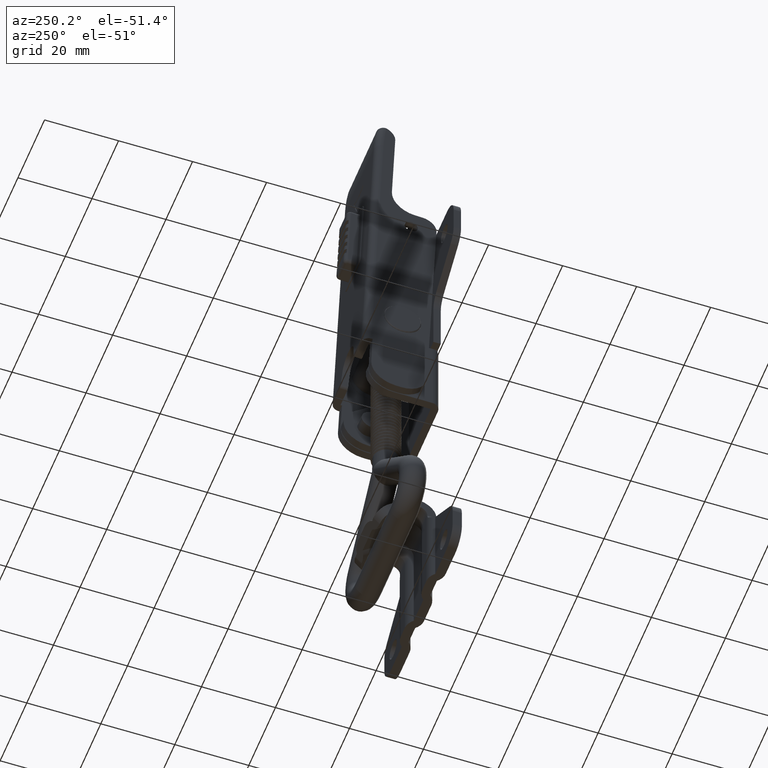
[diagram: clean part render]
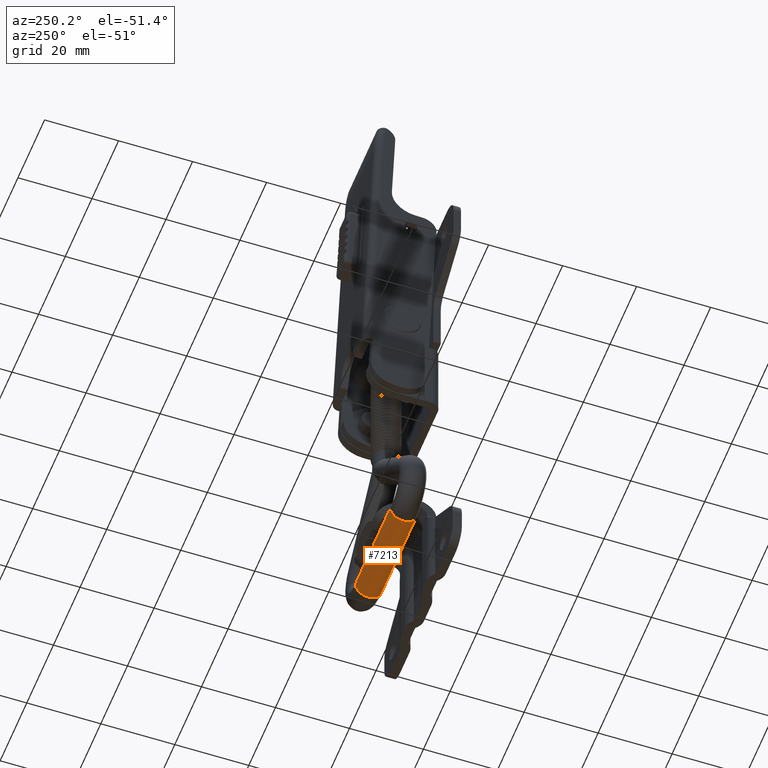
[diagram: same view with one face highlighted and labeled with its STEP entity id]
A machine part, auxiliary view. The second image highlights one B-rep face of the part: STEP entity #7213.
In plain terms, the highlighted cylindrical surface (bore or boss wall) has radius 3.5 mm, axis along (1, 0, 0).
Its self-contained STEP definition (entity closure, byte-faithful):
#1704=FACE_BOUND('',#2274,.T.);
#1879=FACE_OUTER_BOUND('',#2273,.T.);
#2273=EDGE_LOOP('',(#5659));
#2274=EDGE_LOOP('',(#5660));
#2673=CIRCLE('',#7679,3.5);
#2674=CIRCLE('',#7680,3.5);
#3250=VERTEX_POINT('',#32728);
#3251=VERTEX_POINT('',#32730);
#4131=EDGE_CURVE('',#3250,#3250,#2673,.T.);
#4132=EDGE_CURVE('',#3251,#3251,#2674,.T.);
#5659=ORIENTED_EDGE('',*,*,#4131,.T.);
#5660=ORIENTED_EDGE('',*,*,#4132,.F.);
#6991=CYLINDRICAL_SURFACE('',#7678,3.5);
#7213=ADVANCED_FACE('',(#1879,#1704),#6991,.T.);
#7678=AXIS2_PLACEMENT_3D('',#32727,#8768,#8769);
#7679=AXIS2_PLACEMENT_3D('',#32729,#8770,#8771);
#7680=AXIS2_PLACEMENT_3D('',#32731,#8772,#8773);
#8768=DIRECTION('center_axis',(8.10505021779592E-15,0.,-1.));
#8769=DIRECTION('ref_axis',(0.,1.,0.));
#8770=DIRECTION('center_axis',(-4.27435864480685E-15,0.,-1.));
#8771=DIRECTION('ref_axis',(0.,1.,0.));
#8772=DIRECTION('center_axis',(-4.27435864480685E-15,0.,-1.));
#8773=DIRECTION('ref_axis',(0.,1.,0.));
#32727=CARTESIAN_POINT('Origin',(-57.3000000000002,-1.68272461434557,13.1500000000001));
#32728=CARTESIAN_POINT('',(-53.8000000000002,-1.68272461434557,13.1500000000001));
#32729=CARTESIAN_POINT('Origin',(-57.3000000000002,-1.68272461434557,13.1500000000001));
#32730=CARTESIAN_POINT('',(-53.8,-1.68272461434557,-13.1499999999996));
#32731=CARTESIAN_POINT('Origin',(-57.3,-1.68272461434557,-13.1499999999996));